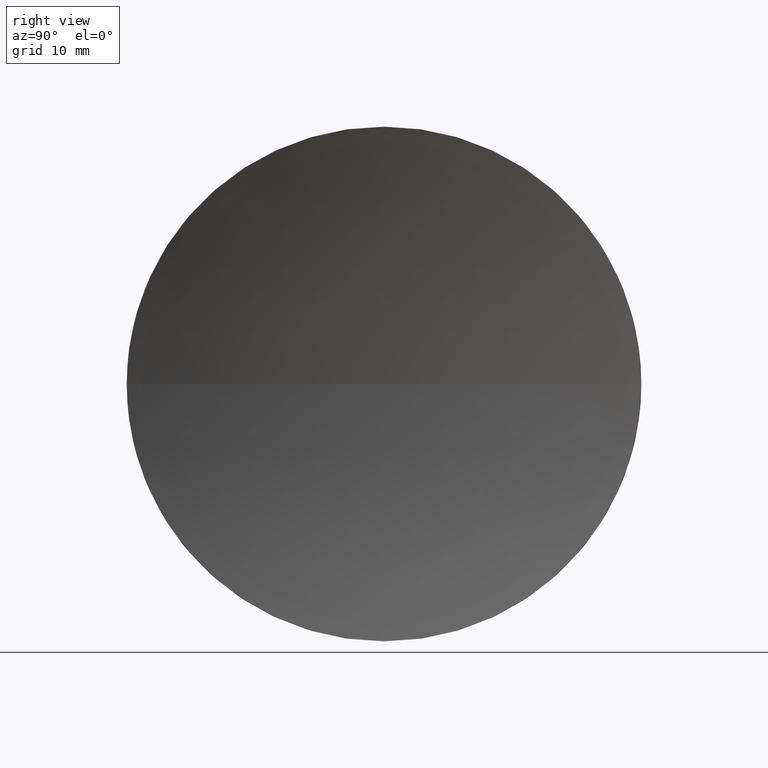
[diagram: clean part render]
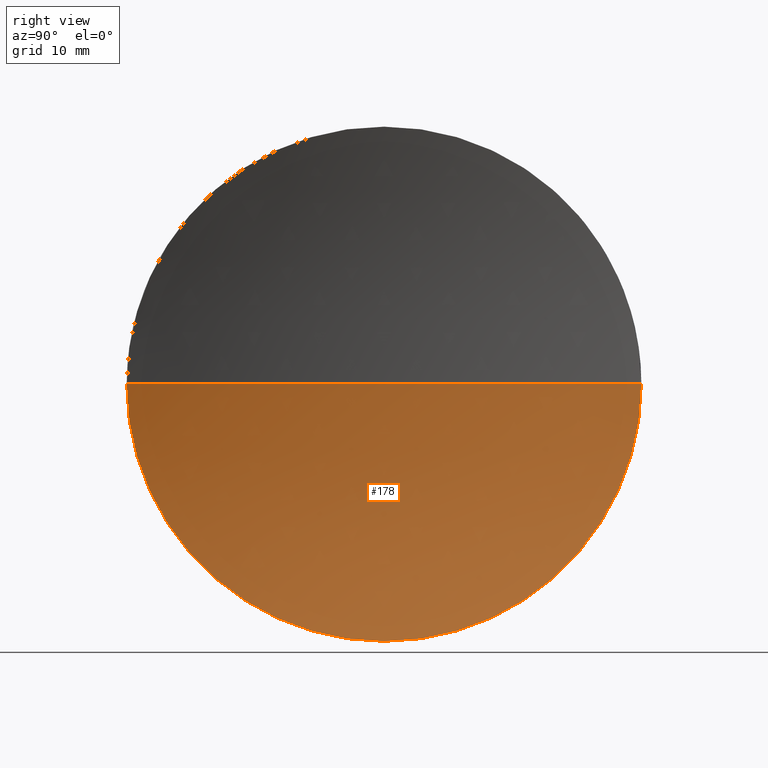
[diagram: same view with one face highlighted and labeled with its STEP entity id]
A machine part, right view. The second image highlights one B-rep face of the part: STEP entity #178.
In plain terms, the highlighted spherical surface has radius 77.52 mm.
Its self-contained STEP definition (entity closure, byte-faithful):
#1 = EDGE_LOOP ( 'NONE', ( #21, #116, #108, #38 ) ) ;
#2 = CARTESIAN_POINT ( 'NONE',  ( 120.0570080214153000, 42.65563045701520700, -2.755455298081542800E-015 ) ) ;
#5 = VERTEX_POINT ( 'NONE', #124 ) ;
#7 = AXIS2_PLACEMENT_3D ( 'NONE', #43, #115, #57 ) ;
#10 = DIRECTION ( 'NONE',  ( 0.0000000000000000000, 1.224646799147353200E-016, -1.000000000000000000 ) ) ;
#14 = DIRECTION ( 'NONE',  ( 0.0000000000000000000, 0.0000000000000000000, 1.000000000000000000 ) ) ;
#15 = EDGE_CURVE ( 'NONE', #5, #157, #79, .T. ) ;
#21 = ORIENTED_EDGE ( 'NONE', *, *, #33, .F. ) ;
#24 = CARTESIAN_POINT ( 'NONE',  ( 194.2398928399500700, 65.15563045701517800, 0.0000000000000000000 ) ) ;
#26 = DIRECTION ( 'NONE',  ( 1.000000000000000000, 0.0000000000000000000, 0.0000000000000000000 ) ) ;
#29 = DIRECTION ( 'NONE',  ( -1.000000000000000000, -0.0000000000000000000, -0.0000000000000000000 ) ) ;
#30 = DIRECTION ( 'NONE',  ( 0.0000000000000000000, 0.0000000000000000000, 1.000000000000000000 ) ) ;
#33 = EDGE_CURVE ( 'NONE', #59, #157, #98, .T. ) ;
#38 = ORIENTED_EDGE ( 'NONE', *, *, #15, .T. ) ;
#42 = VERTEX_POINT ( 'NONE', #171 ) ;
#43 = CARTESIAN_POINT ( 'NONE',  ( 194.2398928399500700, 65.15563045701517800, 0.0000000000000000000 ) ) ;
#44 = AXIS2_PLACEMENT_3D ( 'NONE', #127, #153, #30 ) ;
#56 = DIRECTION ( 'NONE',  ( 0.0000000000000000000, 1.000000000000000000, 1.224646799147353200E-016 ) ) ;
#57 = DIRECTION ( 'NONE',  ( 0.0000000000000000000, 1.000000000000000000, 0.0000000000000000000 ) ) ;
#59 = VERTEX_POINT ( 'NONE', #2 ) ;
#62 = SPHERICAL_SURFACE ( 'NONE', #7, 77.51999999999999600 ) ;
#65 = CIRCLE ( 'NONE', #44, 22.49999999999997900 ) ;
#74 = EDGE_CURVE ( 'NONE', #5, #42, #65, .T. ) ;
#79 = CIRCLE ( 'NONE', #175, 77.51999999999998200 ) ;
#98 = CIRCLE ( 'NONE', #167, 77.51999999999999600 ) ;
#106 = CARTESIAN_POINT ( 'NONE',  ( 194.2398928399500700, 65.15563045701517800, 0.0000000000000000000 ) ) ;
#107 = CIRCLE ( 'NONE', #181, 22.49999999999997900 ) ;
#108 = ORIENTED_EDGE ( 'NONE', *, *, #74, .F. ) ;
#115 = DIRECTION ( 'NONE',  ( 0.0000000000000000000, 0.0000000000000000000, -1.000000000000000000 ) ) ;
#116 = ORIENTED_EDGE ( 'NONE', *, *, #144, .F. ) ;
#124 = CARTESIAN_POINT ( 'NONE',  ( 120.0570080214153000, 87.65563045701519200, 0.0000000000000000000 ) ) ;
#127 = CARTESIAN_POINT ( 'NONE',  ( 120.0570080214153000, 65.15563045701519200, 0.0000000000000000000 ) ) ;
#128 = CARTESIAN_POINT ( 'NONE',  ( 116.7198928399500900, 65.15563045701517800, 0.0000000000000000000 ) ) ;
#136 = DIRECTION ( 'NONE',  ( 0.0000000000000000000, 0.0000000000000000000, 1.000000000000000000 ) ) ;
#138 = CARTESIAN_POINT ( 'NONE',  ( 120.0570080214153000, 65.15563045701519200, 0.0000000000000000000 ) ) ;
#142 = FACE_OUTER_BOUND ( 'NONE', #1, .T. ) ;
#144 = EDGE_CURVE ( 'NONE', #42, #59, #107, .T. ) ;
#153 = DIRECTION ( 'NONE',  ( -1.000000000000000000, -0.0000000000000000000, -0.0000000000000000000 ) ) ;
#157 = VERTEX_POINT ( 'NONE', #128 ) ;
#167 = AXIS2_PLACEMENT_3D ( 'NONE', #24, #10, #56 ) ;
#171 = CARTESIAN_POINT ( 'NONE',  ( 120.0570080214153000, 65.15563045701519200, -22.49999999999997900 ) ) ;
#175 = AXIS2_PLACEMENT_3D ( 'NONE', #106, #136, #26 ) ;
#178 = ADVANCED_FACE ( 'NONE', ( #142 ), #62, .F. ) ;
#181 = AXIS2_PLACEMENT_3D ( 'NONE', #138, #29, #14 ) ;